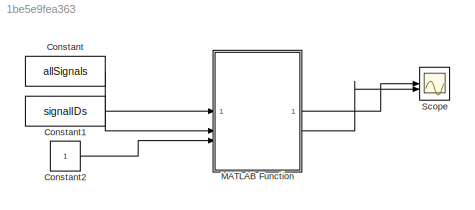
MODEL slx_1be5e9fea363
KIND model
CONFIG AbsTol = auto
CONFIG EnableMultiTasking = off
CONFIG FixedStep = 0.0001
CONFIG MaxStep = auto
CONFIG MinStep = auto
CONFIG RelTol = 1e-3
CONFIG SampleTimeConstraint = Unconstrained
CONFIG SolverName = FixedStepDiscrete
CONFIG StartTime = 0.0
CONFIG StopTime = inf
BLOCK [Constant] Constant
  Value = allSignals
BLOCK [Constant] Constant1
  Value = signalIDs
BLOCK [Constant] Constant2
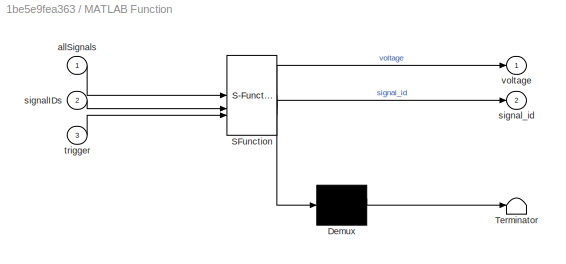
BLOCK [SubSystem] MATLAB Function
  ErrorFcn = Stateflow.Translate.translate
  LibrarySourceBlock = simulink/User-Defined\nFunctions/MATLAB Function
  PermitHierarchicalResolution = ExplicitOnly
  SFBlockType = MATLAB Function
  TreatAsAtomicUnit = on
BLOCK [Demux] MATLAB Function/ Demux 
  Outputs = 1
BLOCK [S-Function] MATLAB Function/ SFunction 
  EnableBusSupport = on
  FunctionName = sf_sfun
  PortCounts = [3 3]
  SFcnIsStateOwnerBlock = off
  SFunctionDeploymentMode = off
  Tag = Stateflow S-Function 2
BLOCK [Terminator] MATLAB Function/ Terminator 
BLOCK [Inport] MATLAB Function/allSignals
BLOCK [Inport] MATLAB Function/signalIDs
  Port = 2
BLOCK [Outport] MATLAB Function/signal_id
  Port = 2
BLOCK [Inport] MATLAB Function/trigger
  Port = 3
BLOCK [Outport] MATLAB Function/voltage
BLOCK [Scope] Scope
  Floating = off
  NumInputPorts = 2
  ScopeSpecificationString = Simulink.scopes.TimeScopeBlockCfg('CurrentConfiguration', extmgr.ConfigurationSet(extmgr.Configuration('Core','General UI',true),extmgr.Configuration('Core','Source UI',true),extmgr.Configuration('Sources','WiredSimulink',true),extmgr.Configuration('Visuals','Time Domain',true,'SerializedDisplays',{struct('MinYLimReal','-26.67522','MaxYLimReal','24.61272','YLabelReal','','MinYLimMag','0.00000','Ma...<+2125ch>
LINE Constant1:1 -> MATLAB Function:2
LINE Constant2:1 -> MATLAB Function:3
LINE Constant:1 -> MATLAB Function:1
LINE MATLAB Function:1 -> Scope:1
LINE MATLAB Function:2 -> Scope:2
CHART MATLAB Function states=1 transitions=1
  STATE_LABEL 'eML_blk_kernel()'
  STATE_LABEL 'SCRIPT:\nfunction [voltage, signal_id] = fcn(allSignals, signalIDs, trigger)\n\npersistent idx\n\nif (isempty(idx))\n    idx = 0;\nend\n\nif trigger \n    idx = idx + 1;\n\n    if idx > length(allSignals)\n        idx = length(allSignals);\n    end\n    \n    voltage = allSignals(idx);\n    signal_id = signalIDs(idx);\nelse\n    voltage = 0;\n    signal_id = 0;\nend\n'
CHART  states=0 transitions=0
